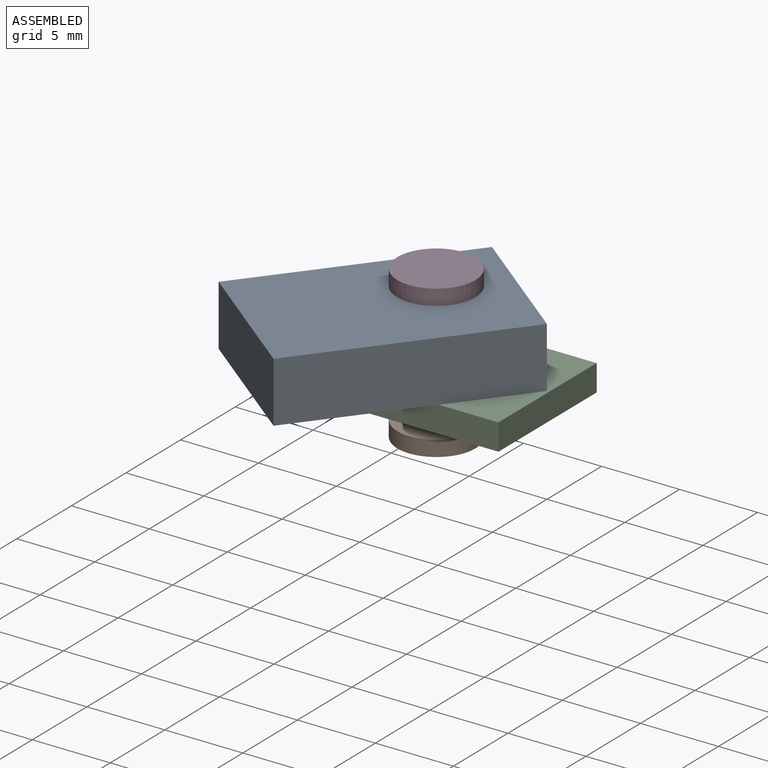
[diagram: assembled view]
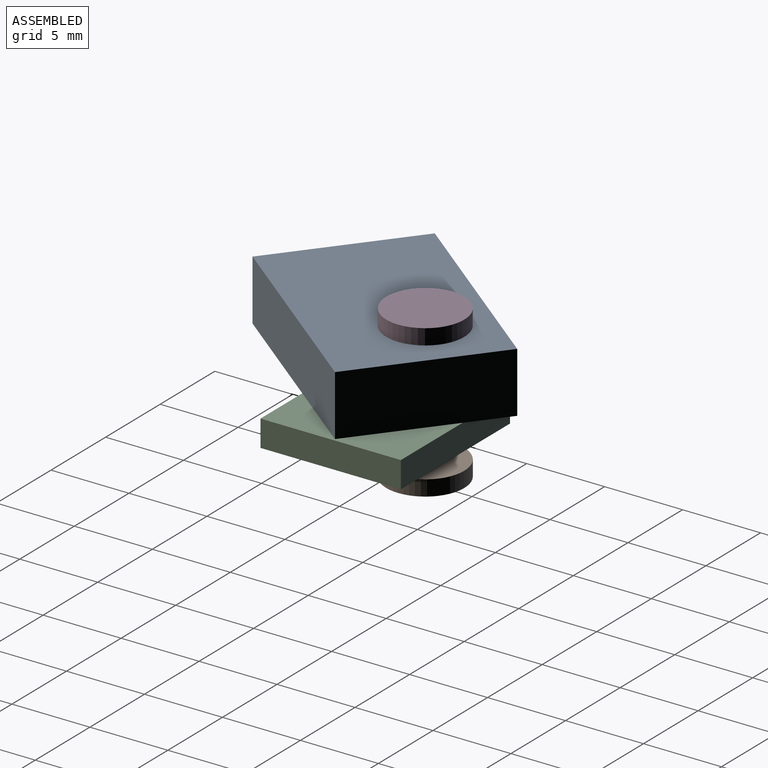
[diagram: assembled view, second angle]
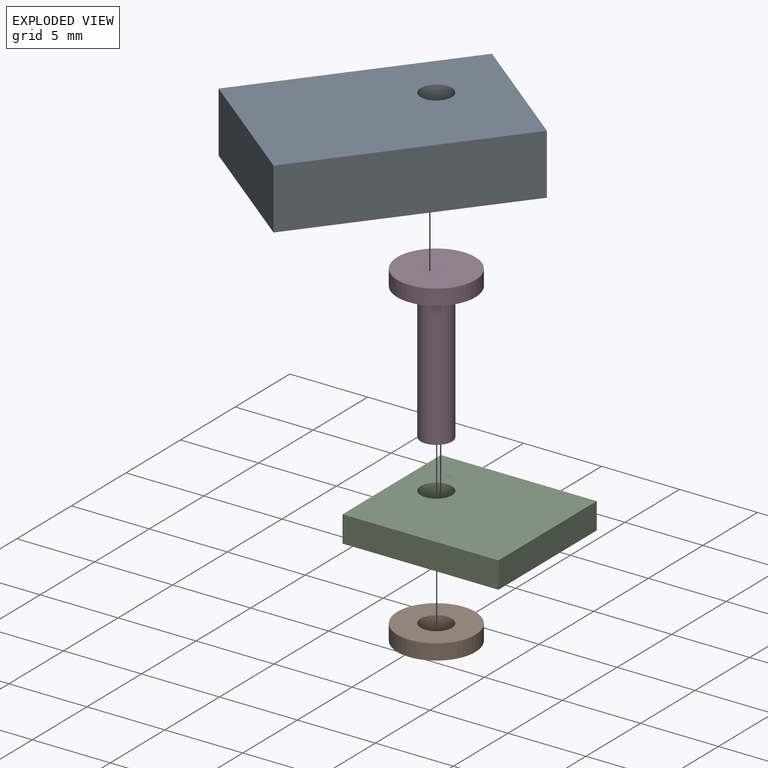
[diagram: exploded view]
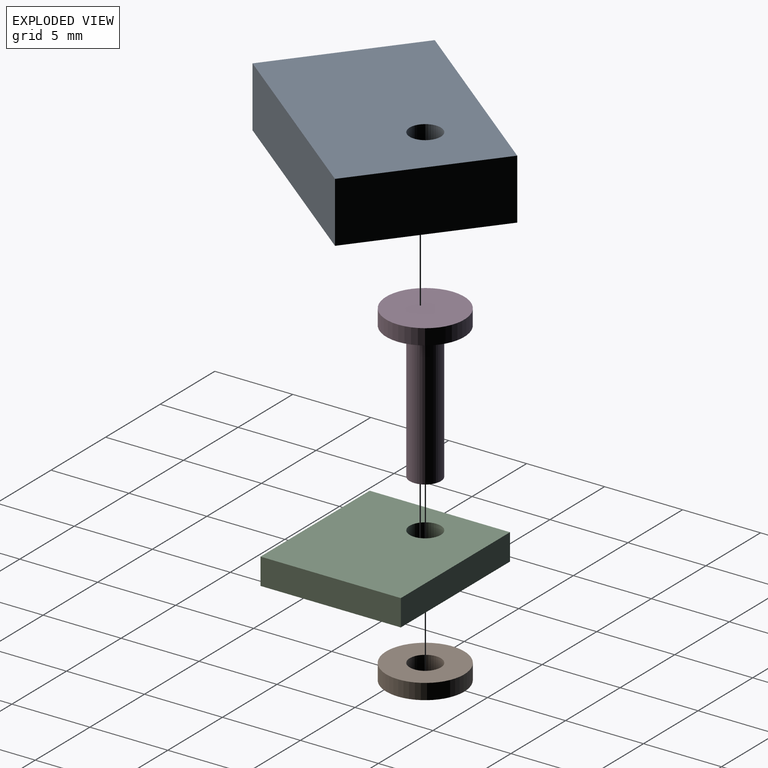
[diagram: exploded view, second angle]
ASSEMBLY  parts=4 mates=3
PART A: 7 faces, bbox 15x10x3.9 mm
  f0: plane 10x3.88mm, normal (1,0,0), area 38.8mm2, adj f1,f3,f4,f5
  f1: plane 15x3.88mm, normal (0,1,0), area 58.2mm2, adj f0,f2,f4,f5
  f2: plane 10x3.88mm, normal (-1,0,0), area 38.8mm2, adj f1,f3,f4,f5
  f3: plane 15x3.88mm, normal (0,-1,0), area 58.2mm2, adj f0,f2,f4,f5
  f4: plane 15x10mm, normal (0,0,1), area 146.9mm2, adj f0,f1,f2,f3,f6
  f5: plane 15x10mm, normal (0,0,-1), area 146.9mm2, adj f0,f1,f2,f3,f6
  f6: cylinder r=1mm len=3.88mm, axis (0,0,-1), area 24.4mm2, adj f4,f5
PART B: 4 faces, bbox 5x5x1 mm
  f0: cylinder r=2.5mm len=5mm, axis (0,0,1), area 15.7mm2, adj f1,f2
  f1: plane 5x5mm, normal (0,0,-1), area 16.5mm2, adj f0,f3
  f2: plane 5x5mm, normal (0,0,1), area 16.5mm2, adj f0,f3
  f3: cylinder r=1mm len=2mm, axis (0,0,1), area 6.3mm2, adj f1,f2
PART C: 7 faces, bbox 10x9x1.7 mm
  f0: plane 10x1.7mm, normal (0,-1,0), area 17mm2, adj f1,f3,f4,f5
  f1: plane 9x1.7mm, normal (1,0,0), area 15.3mm2, adj f0,f2,f4,f5
  f2: plane 10x1.7mm, normal (0,1,0), area 17mm2, adj f1,f3,f4,f5
  f3: plane 9x1.7mm, normal (-1,0,0), area 15.3mm2, adj f0,f2,f4,f5
  f4: plane 10x9mm, normal (0,0,-1), area 86.9mm2, adj f0,f1,f2,f3,f6
  f5: plane 10x9mm, normal (0,0,1), area 86.9mm2, adj f0,f1,f2,f3,f6
  f6: cylinder r=1mm len=2mm, axis (0,0,-1), area 10.7mm2, adj f4,f5
PART D: 5 faces, bbox 5x5x9.8 mm
  f0: cylinder r=1mm len=8.76mm, axis (0,0,-1), area 55mm2, adj f1,f3
  f1: plane 2x2mm, normal (0,0,-1), area 3.1mm2, adj f0
  f2: cylinder r=2.5mm len=5mm, axis (0,0,-1), area 15.7mm2, adj f3,f4
  f3: plane 5x5mm, normal (0,0,-1), area 16.5mm2, adj f0,f2
  f4: plane 5x5mm, normal (0,0,1), area 19.6mm2, adj f2
PLACE A rot(axis=(0,0,1),51.8deg) t=(-0.36,3.89,0)mm
PLACE B rot(axis=(0,0,1),51.8deg) t=(-0.36,3.89,0)mm
PLACE C at identity fixed
PLACE D rot(axis=(0,0,1),51.8deg) t=(-0.36,3.89,0)mm
MATE revolute A.f6 <-> C.f6  axis (0,0,-1) through (-4.19,1.57,0)mm
MATE fastened D.f0 <-> B.f0  axis (0,0,-1) through (-4.19,1.57,-4.88)mm
MATE fastened A.f6 <-> D.f0  axis (0,0,1) through (-4.19,1.57,3.88)mm
